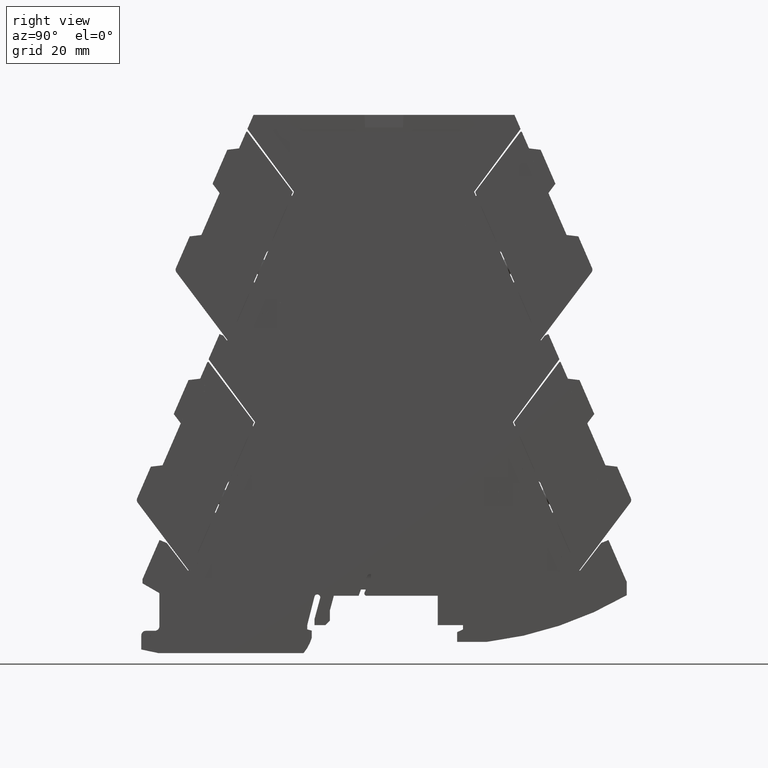
[diagram: clean part render]
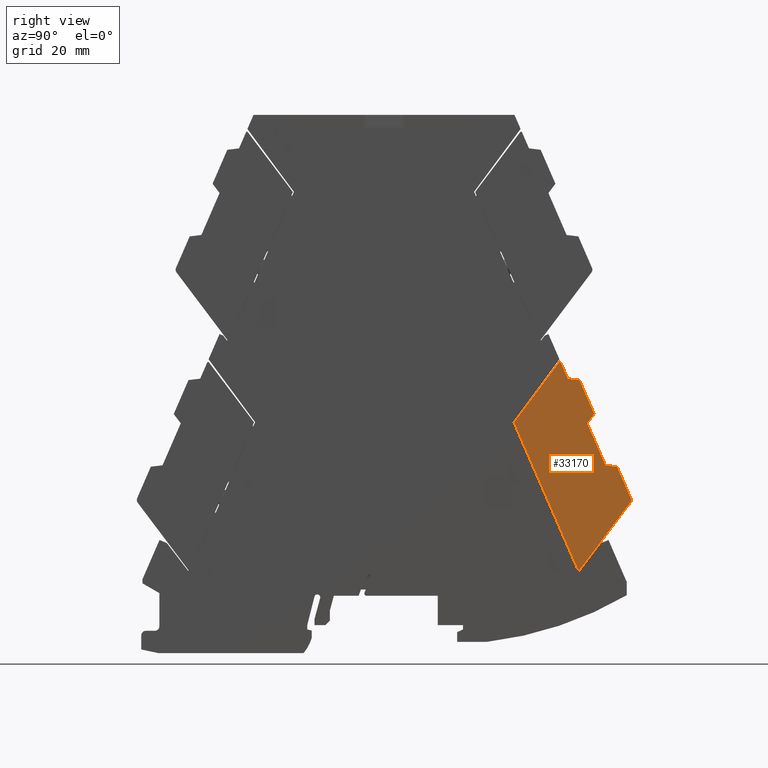
[diagram: same view with one face highlighted and labeled with its STEP entity id]
A machine part, right view. The second image highlights one B-rep face of the part: STEP entity #33170.
In plain terms, the highlighted planar face has unit normal (1, -0, 0).
Its self-contained STEP definition (entity closure, byte-faithful):
#2400=CARTESIAN_POINT('',(-162.209750519817,-6.99343677588573,
-9.54999999895789));
#2410=VERTEX_POINT('',#2400);
#2590=CARTESIAN_POINT('',(-144.491342192195,23.6870910457856,
-9.55000000083125));
#2600=VERTEX_POINT('',#2590);
#2630=CARTESIAN_POINT('',(-158.170948803993,2.1316282072803E-14,
-9.54999999938491));
#2640=DIRECTION('',(0.500105784302748,0.865964320573852,
-5.28758981044319E-11));
#2650=VECTOR('',#2640,1.);
#2660=LINE('',#2630,#2650);
#2670=EDGE_CURVE('',#2410,#2600,#2660,.T.);
#3340=CARTESIAN_POINT('',(-127.834970243558,23.5417332228139,
-9.55000000252271));
#3350=VERTEX_POINT('',#3340);
#3380=CARTESIAN_POINT('',(0.,22.4261353561559,-9.55000001550444));
#3390=DIRECTION('',(-0.999961923133656,0.00872652753623981,
1.01546791808627E-10));
#3400=VECTOR('',#3390,1.);
#3410=LINE('',#3380,#3400);
#3420=EDGE_CURVE('',#3350,#2600,#3410,.T.);
#3580=CARTESIAN_POINT('',(-127.663522684407,23.241719681013,
-9.55000000253941));
#3590=VERTEX_POINT('',#3580);
#3620=CARTESIAN_POINT('',(-127.836715549065,23.3417408381872,
-9.55000000252205));
#3630=DIRECTION('',(-1.00774222510954E-10,-1.12576479819879E-12,-1.));
#3640=DIRECTION('',(0.999961923133654,-0.00872652753639959,
-1.00760561326841E-10));
#3650=AXIS2_PLACEMENT_3D('',#3620,#3630,#3640);
#3660=CIRCLE('',#3650,0.2);
#3670=EDGE_CURVE('',#3350,#3590,#3660,.T.);
#4330=CARTESIAN_POINT('',(-143.476039707184,-7.62296120159263,
-9.55000000085919));
#4340=VERTEX_POINT('',#4330);
#4680=CARTESIAN_POINT('',(-162.213817258033,-7.45943924342347,
-9.54999999895636));
#4690=VERTEX_POINT('',#4680);
#4720=CARTESIAN_POINT('',(0.,-8.87505648875292,-9.55000001542928));
#4730=DIRECTION('',(0.999961923133656,-0.00872652753623987,
-1.01546791808627E-10));
#4740=VECTOR('',#4730,1.);
#4750=LINE('',#4720,#4740);
#4760=EDGE_CURVE('',#4690,#4340,#4750,.T.);
#7940=CARTESIAN_POINT('',(-129.625928092798,19.8436924645578,
-9.55000000233192));
#7950=VERTEX_POINT('',#7940);
#7980=CARTESIAN_POINT('',(-141.08592147552,2.1316282072803E-14,
-9.55000000112026));
#7990=DIRECTION('',(-0.500105784302748,-0.865964320573852,
5.28759258600076E-11));
#8000=VECTOR('',#7990,1.);
#8010=LINE('',#7980,#8000);
#8020=EDGE_CURVE('',#3590,#7950,#8010,.T.);
#24130=CARTESIAN_POINT('',(-143.467313179645,-6.62299927818887,
-9.55000000086248));
#24140=DIRECTION('',(1.00774222510954E-10,1.12576479819879E-12,1.));
#24150=DIRECTION('',(0.999961923133654,-0.00872652753639959,
-1.00760561326841E-10));
#24160=AXIS2_PLACEMENT_3D('',#24130,#24140,#24150);
#24170=CIRCLE('',#24160,1.);
#24180=CARTESIAN_POINT('',(-142.601348858528,-7.12310506280527,
-9.55000000094924));
#24190=VERTEX_POINT('',#24180);
#24200=EDGE_CURVE('',#4340,#24190,#24170,.T.);
#24360=CARTESIAN_POINT('',(2.8421709430404E-14,9.32563653623513,
-9.55000001547298));
#24370=DIRECTION('',(-0.999961923133656,0.00872652753623987,
1.01546791808627E-10));
#24380=VECTOR('',#24370,1.);
#24390=LINE('',#24360,#24380);
#24400=CARTESIAN_POINT('',(-132.434530595542,10.4813741210917,
-9.55000000202417));
#24410=VERTEX_POINT('',#24400);
#24420=CARTESIAN_POINT('',(-135.019760828803,10.5039350629597,
-9.55000000176164));
#24430=VERTEX_POINT('',#24420);
#24440=EDGE_CURVE('',#24410,#24430,#24390,.T.);
#24770=CARTESIAN_POINT('',(-140.084358501353,1.73426868406698,
-9.55000000122615));
#24780=VERTEX_POINT('',#24770);
#24810=CARTESIAN_POINT('',(-141.08592147552,2.1316282072803E-14,
-9.55000000112026));
#24820=DIRECTION('',(-0.500105784302748,-0.865964320573852,
5.28759258600076E-11));
#24830=VECTOR('',#24820,1.);
#24840=LINE('',#24810,#24830);
#24850=EDGE_CURVE('',#24430,#24780,#24840,.T.);
#25260=CARTESIAN_POINT('',(-138.487662001609,2.1316282072803E-14,
-9.55000000138417));
#25270=DIRECTION('',(-0.500105784302748,-0.865964320573852,
5.28759258600076E-11));
#25280=VECTOR('',#25270,1.);
#25290=LINE('',#25260,#25280);
#25300=CARTESIAN_POINT('',(-138.794183140722,-0.530760447698498,
-9.55000000135177));
#25310=VERTEX_POINT('',#25300);
#25320=EDGE_CURVE('',#25310,#24190,#25290,.T.);
#25450=CARTESIAN_POINT('',(-139.096507752099,2.1316282072803E-14,
-9.55000000132233));
#25460=DIRECTION('',(-0.494944961437488,0.86892432647938,
4.81859274703567E-11));
#25470=VECTOR('',#25460,1.);
#25480=LINE('',#25450,#25470);
#25490=EDGE_CURVE('',#25310,#24780,#25480,.T.);
#26100=CARTESIAN_POINT('',(-128.335752732167,17.5786633327923,
-9.55000000245753));
#26110=VERTEX_POINT('',#26100);
#26140=CARTESIAN_POINT('',(-118.322831491231,2.1316282072803E-14,
-9.55000000343234));
#26150=DIRECTION('',(-0.494944961437488,0.86892432647938,
4.81859274703567E-11));
#26160=VECTOR('',#26150,1.);
#26170=LINE('',#26140,#26160);
#26180=EDGE_CURVE('',#26110,#7950,#26170,.T.);
#26260=CARTESIAN_POINT('',(-138.487662001609,2.1316282072803E-14,
-9.55000000138417));
#26270=DIRECTION('',(-0.500105784302748,-0.865964320573852,
5.28759258600076E-11));
#26280=VECTOR('',#26270,1.);
#26290=LINE('',#26260,#26280);
#26300=EDGE_CURVE('',#26110,#24410,#26290,.T.);
#32920=CARTESIAN_POINT('',(-146.763942497471,10.8898733385578,
-9.55000000056969));
#32930=DIRECTION('',(1.01571614201302E-10,2.40118788303072E-12,1.));
#32940=DIRECTION('',(-1.08412129273731E-9,1.,-2.40118777291478E-12));
#32950=AXIS2_PLACEMENT_3D('',#32920,#32930,#32940);
#32960=PLANE('',#32950);
#32970=ORIENTED_EDGE('',*,*,#3670,.F.);
#32980=ORIENTED_EDGE('',*,*,#8020,.F.);
#32990=ORIENTED_EDGE('',*,*,#26180,.T.);
#33000=ORIENTED_EDGE('',*,*,#26300,.F.);
#33010=ORIENTED_EDGE('',*,*,#24440,.F.);
#33020=ORIENTED_EDGE('',*,*,#24850,.F.);
#33030=ORIENTED_EDGE('',*,*,#25490,.T.);
#33040=ORIENTED_EDGE('',*,*,#25320,.F.);
#33050=ORIENTED_EDGE('',*,*,#24200,.T.);
#33060=ORIENTED_EDGE('',*,*,#4760,.T.);
#33070=CARTESIAN_POINT('',(-162.148719777324,2.1316282072803E-14,
-9.54999999898088));
#33080=DIRECTION('',(0.00872652754141354,0.999961923133611,
-3.28746491834453E-12));
#33090=VECTOR('',#33080,1.);
#33100=LINE('',#33070,#33090);
#33110=EDGE_CURVE('',#4690,#2410,#33100,.T.);
#33120=ORIENTED_EDGE('',*,*,#33110,.F.);
#33130=ORIENTED_EDGE('',*,*,#2670,.F.);
#33140=ORIENTED_EDGE('',*,*,#3420,.T.);
#33150=EDGE_LOOP('',(#33140,#33130,#33120,#33060,#33050,#33040,#33030,
#33020,#33010,#33000,#32990,#32980,#32970));
#33160=FACE_OUTER_BOUND('',#33150,.T.);
#33170=ADVANCED_FACE('',(#33160),#32960,.T.);